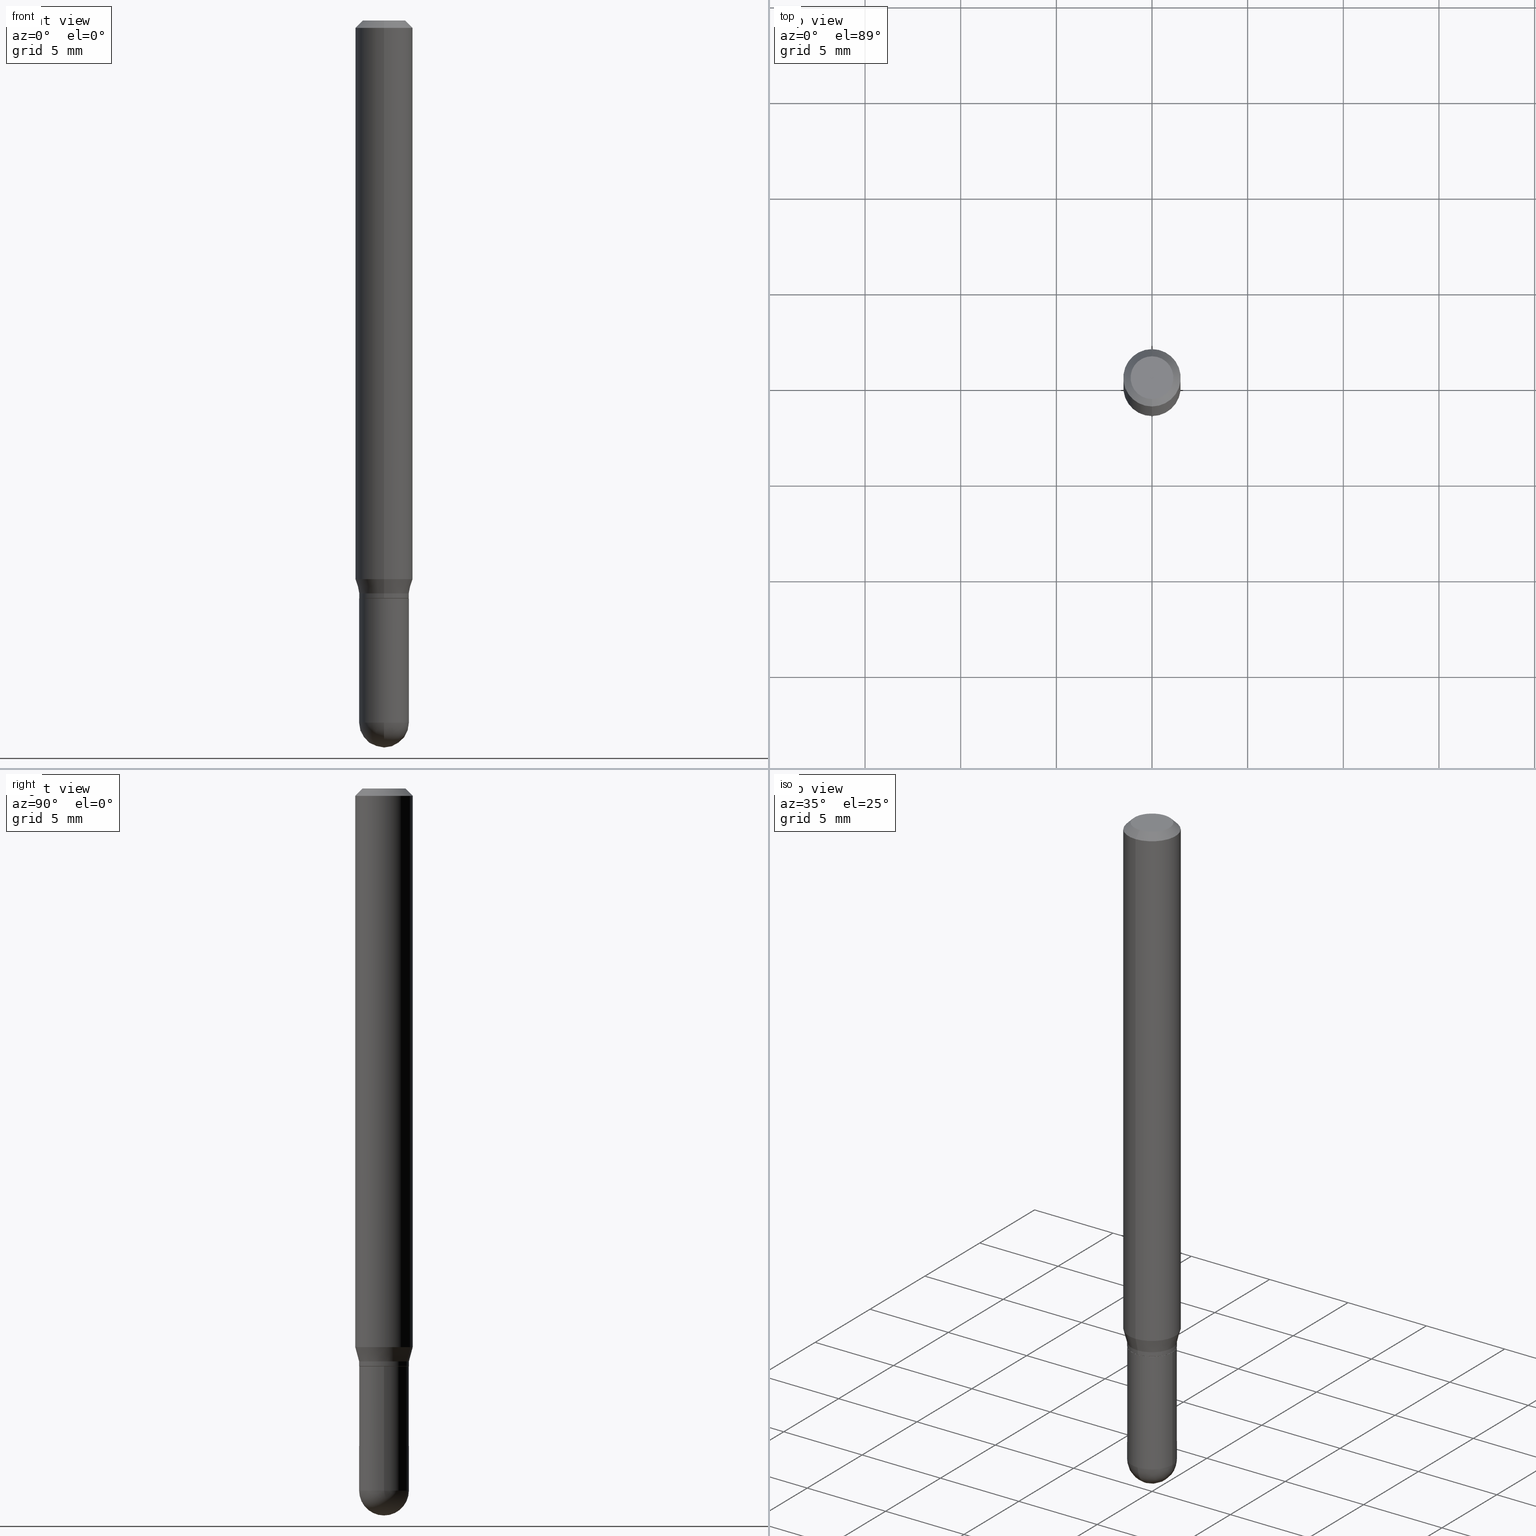
[diagram: canonical four-view strip — front | top / right | iso, engineering-drawing reading convention]
A machine part, canonical four-view strip (front | top / right | iso — engineering-drawing reading convention). The complete STEP part file that produces these views, byte-faithful:
ISO-10303-21;
HEADER;
FILE_DESCRIPTION (( 'STEP AP203' ),
    '1' );
FILE_NAME ('01995.STEP',
    '2024-03-07T19:53:20',
    ( '' ),
    ( '' ),
    'SwSTEP 2.0',
    'SolidWorks 2023',
    '' );
FILE_SCHEMA (( 'CONFIG_CONTROL_DESIGN' ));
ENDSEC;

DATA;
#1 = CARTESIAN_POINT ( 'NONE',  ( 3.533457878056902611E-29, -5.044841386494460595E-15, -1.444899999999999629 ) ) ;
#2 = ORIENTED_EDGE ( 'NONE', *, *, #408, .T. ) ;
#3 = VERTEX_POINT ( 'NONE', #276 ) ;
#4 = DIRECTION ( 'NONE',  ( 6.982962677686265922E-15, 1.000000000000000000, -3.491377669658199163E-15 ) ) ;
#5 = ORIENTED_EDGE ( 'NONE', *, *, #491, .T. ) ;
#6 = CC_DESIGN_APPROVAL ( #15, ( #486 ) ) ;
#7 = PERSON_AND_ORGANIZATION ( #372, #468 ) ;
#8 = CARTESIAN_POINT ( 'NONE',  ( 3.529079426656305644E-29, -5.051111578106095503E-15, -1.444899999999999851 ) ) ;
#9 = ORIENTED_EDGE ( 'NONE', *, *, #335, .T. ) ;
#10 = MECHANICAL_CONTEXT ( 'NONE', #428, 'mechanical' ) ;
#11 = DIRECTION ( 'NONE',  ( -2.445468806185136597E-29, 3.491481338843145583E-15, 1.000000000000000000 ) ) ;
#12 = COORDINATED_UNIVERSAL_TIME_OFFSET ( 5, 0, .BEHIND. ) ;
#13 = FACE_OUTER_BOUND ( 'NONE', #421, .T. ) ;
#14 = FACE_OUTER_BOUND ( 'NONE', #290, .T. ) ;
#15 = APPROVAL ( #488, 'UNSPECIFIED' ) ;
#16 = PERSON_AND_ORGANIZATION ( #372, #468 ) ;
#17 = EDGE_CURVE ( 'NONE', #308, #162, #155, .T. ) ;
#18 = AXIS2_PLACEMENT_3D ( 'NONE', #499, #140, #292 ) ;
#19 = APPROVAL_PERSON_ORGANIZATION ( #16, #167, #205 ) ;
#20 = FACE_OUTER_BOUND ( 'NONE', #86, .T. ) ;
#21 = CARTESIAN_POINT ( 'NONE',  ( 2.906525713811193925E-29, -4.149502360388770028E-15, -1.188499999999999890 ) ) ;
#22 = LINE ( 'NONE', #411, #504 ) ;
#23 = EDGE_CURVE ( 'NONE', #225, #28, #33, .T. ) ;
#24 = FACE_OUTER_BOUND ( 'NONE', #410, .T. ) ;
#25 = DIRECTION ( 'NONE',  ( -2.445468806185136597E-29, 3.491481338843145583E-15, 1.000000000000000000 ) ) ;
#26 = ORIENTED_EDGE ( 'NONE', *, *, #115, .F. ) ;
#27 = AXIS2_PLACEMENT_3D ( 'NONE', #131, #446, #102 ) ;
#28 = VERTEX_POINT ( 'NONE', #96 ) ;
#29 = DIRECTION ( 'NONE',  ( 5.024295867788190974E-15, 0.7071067811865681119, 0.7071067811865270336 ) ) ;
#30 = FACE_OUTER_BOUND ( 'NONE', #341, .T. ) ;
#31 = CARTESIAN_POINT ( 'NONE',  ( 3.637978807091716577E-16, 0.05120000000000005796, -1.787585366864999974E-16 ) ) ;
#32 = CARTESIAN_POINT ( 'NONE',  ( 0.000000000000000000, 0.000000000000000000, 0.000000000000000000 ) ) ;
#33 = CIRCLE ( 'NONE', #171, 0.05120000000000005796 ) ;
#34 = CARTESIAN_POINT ( 'NONE',  ( 3.652098203832684976E-29, -5.233010518460681627E-15, -1.496099999999999985 ) ) ;
#35 = CONICAL_SURFACE ( 'NONE', #236, 0.05070000000000000201, 0.7853981633974739252 ) ;
#36 = APPROVAL_PERSON_ORGANIZATION ( #84, #15, #364 ) ;
#37 = DIRECTION ( 'NONE',  ( -6.982962677686265133E-15, -1.000000000000000000, 3.491377669658199558E-15 ) ) ;
#38 = ORIENTED_EDGE ( 'NONE', *, *, #350, .F. ) ;
#39 =( NAMED_UNIT ( * ) SI_UNIT ( $, .STERADIAN. ) SOLID_ANGLE_UNIT ( ) );
#40 = ORIENTED_EDGE ( 'NONE', *, *, #82, .F. ) ;
#41 = CARTESIAN_POINT ( 'NONE',  ( 2.883293072430288411E-29, -4.116334272527016902E-15, -1.178999999999999826 ) ) ;
#42 = VECTOR ( 'NONE', #74, 39.37007874015748143 ) ;
#43 = CARTESIAN_POINT ( 'NONE',  ( 3.575276890975659377E-16, 0.05119999999999585993, -1.189000000000000057 ) ) ;
#44 = CARTESIAN_POINT ( 'NONE',  ( -4.051124067684085231E-16, -0.05905000000000005383, -0.01499999999999981730 ) ) ;
#45 = EDGE_LOOP ( 'NONE', ( #194, #349, #331, #436 ) ) ;
#46 = ADVANCED_FACE ( 'NONE', ( #246 ), #142, .T. ) ;
#47 = CARTESIAN_POINT ( 'NONE',  ( 3.637978807092061704E-16, 0.05119999999999488155, -1.444899999999999851 ) ) ;
#48 = ORIENTED_EDGE ( 'NONE', *, *, #408, .F. ) ;
#49 = AXIS2_PLACEMENT_3D ( 'NONE', #166, #55, #252 ) ;
#50 = APPLICATION_PROTOCOL_DEFINITION ( 'international standard', 'config_control_design', 1994, #428 ) ;
#51 = CARTESIAN_POINT ( 'NONE',  ( -4.123439461173460281E-16, -0.05905000000000402288, -1.149703401160584448 ) ) ;
#52 = ORIENTED_EDGE ( 'NONE', *, *, #53, .T. ) ;
#53 = EDGE_CURVE ( 'NONE', #461, #85, #139, .T. ) ;
#54 = DIRECTION ( 'NONE',  ( 1.000000000000000000, -6.982962677686267499E-15, 4.876176775795935232E-29 ) ) ;
#55 = DIRECTION ( 'NONE',  ( -2.445541197990066903E-29, 3.491377669658199558E-15, 1.000000000000000000 ) ) ;
#56 = DIRECTION ( 'NONE',  ( -2.445541197990066903E-29, 3.491377669658199558E-15, 1.000000000000000000 ) ) ;
#57 = DATE_AND_TIME ( #80, #383 ) ;
#58 = VECTOR ( 'NONE', #373, 39.37007874015748854 ) ;
#59 = AXIS2_PLACEMENT_3D ( 'NONE', #92, #248, #329 ) ;
#60 = DIRECTION ( 'NONE',  ( 1.000000000000000000, -6.982962677686263555E-15, 0.000000000000000000 ) ) ;
#61 = DIRECTION ( 'NONE',  ( 6.982962677686265922E-15, 1.000000000000000000, -3.505890868245046092E-15 ) ) ;
#62 = ORIENTED_EDGE ( 'NONE', *, *, #191, .F. ) ;
#63 = UNCERTAINTY_MEASURE_WITH_UNIT (LENGTH_MEASURE( 1.000000000000000082E-05 ), #392, 'distance_accuracy_value', 'NONE');
#64 = CARTESIAN_POINT ( 'NONE',  ( 3.668311796985106135E-31, -5.237066504487307521E-17, -0.01500000000000002373 ) ) ;
#65 = AXIS2_PLACEMENT_3D ( 'NONE', #404, #25, #251 ) ;
#66 = AXIS2_PLACEMENT_3D ( 'NONE', #207, #213, #371 ) ;
#67 = DIRECTION ( 'NONE',  ( -6.982962677686265133E-15, -1.000000000000000000, 3.491377669658199558E-15 ) ) ;
#68 = DIRECTION ( 'NONE',  ( -6.982962677686265922E-15, -1.000000000000000000, 4.626330217890369336E-15 ) ) ;
#69 = ORIENTED_EDGE ( 'NONE', *, *, #138, .F. ) ;
#70 = CARTESIAN_POINT ( 'NONE',  ( 3.602451670303998485E-16, 0.05069999999999585255, -1.189000000000000057 ) ) ;
#71 = VECTOR ( 'NONE', #430, 39.37007874015748143 ) ;
#72 = PERSON_AND_ORGANIZATION ( #372, #468 ) ;
#73 = CARTESIAN_POINT ( 'NONE',  ( 0.000000000000000000, 0.000000000000000000, 0.000000000000000000 ) ) ;
#74 = DIRECTION ( 'NONE',  ( -2.445541197990066623E-29, 3.491377669658199163E-15, 1.000000000000000000 ) ) ;
#75 = PERSON_AND_ORGANIZATION ( #372, #468 ) ;
#76 = VECTOR ( 'NONE', #124, 39.37007874015748143 ) ;
#77 = DIRECTION ( 'NONE',  ( -6.982962677686266711E-15, -1.000000000000000000, 3.491377669658199163E-15 ) ) ;
#78 = LINE ( 'NONE', #44, #467 ) ;
#79 = ORIENTED_EDGE ( 'NONE', *, *, #115, .T. ) ;
#80 = CALENDAR_DATE ( 2024, 7, 3 ) ;
#81 = ORIENTED_EDGE ( 'NONE', *, *, #429, .F. ) ;
#82 = EDGE_CURVE ( 'NONE', #478, #3, #466, .T. ) ;
#83 = VERTEX_POINT ( 'NONE', #418 ) ;
#84 = PERSON_AND_ORGANIZATION ( #372, #468 ) ;
#85 = VERTEX_POINT ( 'NONE', #459 ) ;
#86 = EDGE_LOOP ( 'NONE', ( #509, #235, #272, #464 ) ) ;
#87 = CIRCLE ( 'NONE', #406, 0.04404999999999999888 ) ;
#88 = CC_DESIGN_DATE_AND_TIME_ASSIGNMENT ( #57, #437, ( #173 ) ) ;
#89 = FACE_OUTER_BOUND ( 'NONE', #355, .T. ) ;
#90 = CARTESIAN_POINT ( 'NONE',  ( 4.123439461173743285E-16, 0.05904999999999994975, -0.01500000000000023016 ) ) ;
#91 = APPROVAL_DATE_TIME ( #267, #167 ) ;
#92 = CARTESIAN_POINT ( 'NONE',  ( 2.907748484410189276E-29, -4.151248049223599265E-15, -1.188999999999999835 ) ) ;
#93 = CARTESIAN_POINT ( 'NONE',  ( -0.05120000000000000939, -4.234308468480308622E-15, -1.188999999999999835 ) ) ;
#94 = AXIS2_PLACEMENT_3D ( 'NONE', #413, #106, #379 ) ;
#95 = AXIS2_PLACEMENT_3D ( 'NONE', #409, #407, #61 ) ;
#96 = CARTESIAN_POINT ( 'NONE',  ( -3.575276890975084002E-16, -0.05120000000000417273, -1.178999999999999826 ) ) ;
#97 = DIMENSIONAL_EXPONENTS ( 1.000000000000000000, 0.000000000000000000, 0.000000000000000000, 0.000000000000000000, 0.000000000000000000, 0.000000000000000000, 0.000000000000000000 ) ;
#98 = CARTESIAN_POINT ( 'NONE',  ( 2.811647033007510511E-29, -4.014048781542148167E-15, -1.149703401160584670 ) ) ;
#99 = ORIENTED_EDGE ( 'NONE', *, *, #214, .F. ) ;
#100 = FACE_OUTER_BOUND ( 'NONE', #197, .T. ) ;
#101 = EDGE_LOOP ( 'NONE', ( #268, #192, #79, #285, #481 ) ) ;
#102 = DIRECTION ( 'NONE',  ( -6.982962677686266711E-15, -1.000000000000000000, 2.667820306312754057E-15 ) ) ;
#103 = EDGE_CURVE ( 'NONE', #154, #395, #441, .T. ) ;
#104 = CONICAL_SURFACE ( 'NONE', #59, 0.05070000000000000201, 0.7853981633974739252 ) ;
#105 = CARTESIAN_POINT ( 'NONE',  ( 5.836726591879914333E-46, -8.332804576564942054E-32, -2.386680950898305570E-17 ) ) ;
#106 = DIRECTION ( 'NONE',  ( -2.445468806185136597E-29, 3.491481338843145583E-15, 1.000000000000000000 ) ) ;
#107 = LENGTH_MEASURE_WITH_UNIT ( LENGTH_MEASURE( 0.02539999999999999897 ), #231 );
#108 = CARTESIAN_POINT ( 'NONE',  ( 2.811647033007510511E-29, -4.014048781542148167E-15, -1.149703401160584670 ) ) ;
#109 = ADVANCED_FACE ( 'NONE', ( #221 ), #184, .T. ) ;
#110 = APPLICATION_CONTEXT ( 'configuration controlled 3d designs of mechanical parts and assemblies' ) ;
#111 = CIRCLE ( 'NONE', #157, 0.05904999999999999832 ) ;
#112 = SPHERICAL_SURFACE ( 'NONE', #196, 0.05119999999999987061 ) ;
#113 = EDGE_CURVE ( 'NONE', #458, #444, #87, .T. ) ;
#114 = VECTOR ( 'NONE', #321, 39.37007874015748143 ) ;
#115 = EDGE_CURVE ( 'NONE', #215, #83, #216, .T. ) ;
#116 = PLANE ( 'NONE',  #322 ) ;
#117 = ORIENTED_EDGE ( 'NONE', *, *, #134, .T. ) ;
#118 = DATE_AND_TIME ( #318, #158 ) ;
#119 = CIRCLE ( 'NONE', #49, 0.05904999999999999832 ) ;
#120 = ORIENTED_EDGE ( 'NONE', *, *, #249, .F. ) ;
#121 = DIRECTION ( 'NONE',  ( -2.445541197990066903E-29, 3.491377669658199558E-15, 1.000000000000000000 ) ) ;
#122 = PERSON_AND_ORGANIZATION_ROLE ( 'design_supplier' ) ;
#123 = ORIENTED_EDGE ( 'NONE', *, *, #343, .F. ) ;
#124 = DIRECTION ( 'NONE',  ( -2.445541197990066623E-29, 3.491377669658199163E-15, 1.000000000000000000 ) ) ;
#125 = CC_DESIGN_DATE_AND_TIME_ASSIGNMENT ( #440, #356, ( #330 ) ) ;
#126 = SECURITY_CLASSIFICATION_LEVEL ( 'unclassified' ) ;
#127 = DIRECTION ( 'NONE',  ( -6.982962677686266711E-15, -1.000000000000000000, 2.667820306312753663E-15 ) ) ;
#128 = SHAPE_DEFINITION_REPRESENTATION ( #245, #445 ) ;
#129 = EDGE_LOOP ( 'NONE', ( #288, #273 ) ) ;
#130 = AXIS2_PLACEMENT_3D ( 'NONE', #482, #200, #362 ) ;
#131 = CARTESIAN_POINT ( 'NONE',  ( 2.883293072430288411E-29, -4.116334272527016902E-15, -1.178999999999999826 ) ) ;
#132 = CARTESIAN_POINT ( 'NONE',  ( -3.575276890975084002E-16, -0.05120000000000417273, -1.178999999999999826 ) ) ;
#133 = DIRECTION ( 'NONE',  ( 6.982962677686265922E-15, 1.000000000000000000, -3.505890868245046092E-15 ) ) ;
#134 = EDGE_CURVE ( 'NONE', #85, #225, #219, .T. ) ;
#135 = AXIS2_PLACEMENT_3D ( 'NONE', #73, #121, #347 ) ;
#136 = CARTESIAN_POINT ( 'NONE',  ( 3.637978807092004511E-16, 0.05119999999999594320, -1.179000000000000048 ) ) ;
#137 = LINE ( 'NONE', #136, #58 ) ;
#138 = EDGE_CURVE ( 'NONE', #154, #215, #274, .T. ) ;
#139 = LINE ( 'NONE', #70, #309 ) ;
#140 = DIRECTION ( 'NONE',  ( 1.000000000000000000, -6.982962677686265922E-15, 4.883557194083112340E-29 ) ) ;
#141 = ORIENTED_EDGE ( 'NONE', *, *, #160, .F. ) ;
#142 = CONICAL_SURFACE ( 'NONE', #27, 0.05120000000000005796, 0.2617993877991509066 ) ;
#143 = AXIS2_PLACEMENT_3D ( 'NONE', #403, #170, #286 ) ;
#144 = CYLINDRICAL_SURFACE ( 'NONE', #182, 0.05120000000000005796 ) ;
#145 = LINE ( 'NONE', #295, #414 ) ;
#146 = ORIENTED_EDGE ( 'NONE', *, *, #214, .T. ) ;
#147 = FACE_OUTER_BOUND ( 'NONE', #384, .T. ) ;
#148 = EDGE_CURVE ( 'NONE', #506, #308, #145, .T. ) ;
#149 = PRODUCT ( '01995', '01995', '', ( #10 ) ) ;
#150 = CARTESIAN_POINT ( 'NONE',  ( -3.575276890975372429E-16, -0.05120000000000005796, 1.787585366864999974E-16 ) ) ;
#151 = DIRECTION ( 'NONE',  ( -2.445541197990066903E-29, 3.491377669658199558E-15, 1.000000000000000000 ) ) ;
#152 = APPROVAL_STATUS ( 'not_yet_approved' ) ;
#153 = DIRECTION ( 'NONE',  ( 1.000000000000000000, -6.982962677686263555E-15, 0.000000000000000000 ) ) ;
#154 = VERTEX_POINT ( 'NONE', #34 ) ;
#155 = CIRCLE ( 'NONE', #65, 0.05120000000000000939 ) ;
#156 = CARTESIAN_POINT ( 'NONE',  ( -3.536586717851222218E-16, -0.04404999999999999888, 1.299283768394606275E-16 ) ) ;
#157 = AXIS2_PLACEMENT_3D ( 'NONE', #98, #483, #487 ) ;
#158 = LOCAL_TIME ( 14, 53, 20.00000000000000000, #233 ) ;
#159 = ORIENTED_EDGE ( 'NONE', *, *, #294, .F. ) ;
#160 = EDGE_CURVE ( 'NONE', #461, #338, #503, .T. ) ;
#161 = APPROVAL_DATE_TIME ( #118, #15 ) ;
#162 = VERTEX_POINT ( 'NONE', #507 ) ;
#163 = DIRECTION ( 'NONE',  ( 2.445541197990066903E-29, -3.491377669658199558E-15, -1.000000000000000000 ) ) ;
#164 = CALENDAR_DATE ( 2024, 7, 3 ) ;
#165 = AXIS2_PLACEMENT_3D ( 'NONE', #108, #291, #68 ) ;
#166 = CARTESIAN_POINT ( 'NONE',  ( 3.668311796985106135E-31, -5.237066504487307521E-17, -0.01500000000000002373 ) ) ;
#167 = APPROVAL ( #369, 'UNSPECIFIED' ) ;
#168 = LINE ( 'NONE', #132, #208 ) ;
#169 = ADVANCED_FACE ( 'NONE', ( #147 ), #297, .F. ) ;
#170 = DIRECTION ( 'NONE',  ( -2.445468806185136597E-29, 3.491481338843145583E-15, 1.000000000000000000 ) ) ;
#171 = AXIS2_PLACEMENT_3D ( 'NONE', #426, #490, #361 ) ;
#172 = VERTEX_POINT ( 'NONE', #497 ) ;
#173 = PRODUCT_DEFINITION ( 'UNKNOWN', '', #486, #501 ) ;
#174 = DIRECTION ( 'NONE',  ( -2.445541197990066903E-29, 3.491377669658199558E-15, 1.000000000000000000 ) ) ;
#175 = DIRECTION ( 'NONE',  ( 1.000000000000000000, -6.982962677686267499E-15, 4.876176775795935232E-29 ) ) ;
#176 = ORIENTED_EDGE ( 'NONE', *, *, #456, .T. ) ;
#177 = DIRECTION ( 'NONE',  ( 1.000000000000000000, -7.105427357601001070E-15, 4.926315508542082329E-29 ) ) ;
#178 = CARTESIAN_POINT ( 'NONE',  ( 5.836726591879914333E-46, -8.332804576564942054E-32, -2.386680950898305570E-17 ) ) ;
#179 = DIRECTION ( 'NONE',  ( -2.445541197990066623E-29, 3.491377669658199163E-15, 1.000000000000000000 ) ) ;
#180 = ORIENTED_EDGE ( 'NONE', *, *, #82, .T. ) ;
#181 = AXIS2_PLACEMENT_3D ( 'NONE', #449, #243, #60 ) ;
#182 = AXIS2_PLACEMENT_3D ( 'NONE', #32, #183, #77 ) ;
#183 = DIRECTION ( 'NONE',  ( -2.445541197990066903E-29, 3.491377669658199558E-15, 1.000000000000000000 ) ) ;
#184 = CYLINDRICAL_SURFACE ( 'NONE', #381, 0.05904999999999999832 ) ;
#185 = LINE ( 'NONE', #229, #71 ) ;
#186 = DIRECTION ( 'NONE',  ( -2.445541197990066903E-29, 3.491377669658199558E-15, 1.000000000000000000 ) ) ;
#187 = AXIS2_PLACEMENT_3D ( 'NONE', #332, #380, #339 ) ;
#188 = AXIS2_PLACEMENT_3D ( 'NONE', #41, #186, #190 ) ;
#189 = PRODUCT_RELATED_PRODUCT_CATEGORY ( 'detail', '', ( #149 ) ) ;
#190 = DIRECTION ( 'NONE',  ( -6.982962677686266711E-15, -1.000000000000000000, 2.667820306312754057E-15 ) ) ;
#191 = EDGE_CURVE ( 'NONE', #225, #3, #137, .T. ) ;
#192 = ORIENTED_EDGE ( 'NONE', *, *, #448, .T. ) ;
#193 = DIRECTION ( 'NONE',  ( -2.445468806185136597E-29, 3.491481338843145583E-15, 1.000000000000000000 ) ) ;
#194 = ORIENTED_EDGE ( 'NONE', *, *, #435, .F. ) ;
#195 = DIRECTION ( 'NONE',  ( 1.000000000000000000, 0.000000000000000000, 0.000000000000000000 ) ) ;
#196 = AXIS2_PLACEMENT_3D ( 'NONE', #8, #480, #427 ) ;
#197 = EDGE_LOOP ( 'NONE', ( #146, #117, #48, #240 ) ) ;
#198 = PERSON_AND_ORGANIZATION_ROLE ( 'design_owner' ) ;
#199 = EDGE_LOOP ( 'NONE', ( #5, #319 ) ) ;
#200 = DIRECTION ( 'NONE',  ( -2.445541197990066903E-29, 3.491377669658199558E-15, 1.000000000000000000 ) ) ;
#201 = LINE ( 'NONE', #90, #114 ) ;
#202 = PERSON_AND_ORGANIZATION_ROLE ( 'classification_officer' ) ;
#203 = FACE_OUTER_BOUND ( 'NONE', #376, .T. ) ;
#204 = EDGE_CURVE ( 'NONE', #444, #365, #201, .T. ) ;
#205 = APPROVAL_ROLE ( '' ) ;
#206 = VECTOR ( 'NONE', #179, 39.37007874015748143 ) ;
#207 = CARTESIAN_POINT ( 'NONE',  ( 2.907662410554126992E-29, -4.151371311884500358E-15, -1.188999999999999835 ) ) ;
#208 = VECTOR ( 'NONE', #280, 39.37007874015748854 ) ;
#209 = ADVANCED_FACE ( 'NONE', ( #89 ), #423, .T. ) ;
#210 = ADVANCED_FACE ( 'NONE', ( #24 ), #35, .T. ) ;
#211 = CARTESIAN_POINT ( 'NONE',  ( 3.916866830877838757E-16, 0.05119999999999594320, -1.179000000000000048 ) ) ;
#212 = DIRECTION ( 'NONE',  ( -6.982962677686265922E-15, -1.000000000000000000, 2.694130171266531790E-15 ) ) ;
#213 = DIRECTION ( 'NONE',  ( -2.445468806185136597E-29, 3.491481338843145583E-15, 1.000000000000000000 ) ) ;
#214 = EDGE_CURVE ( 'NONE', #172, #85, #382, .T. ) ;
#215 = VERTEX_POINT ( 'NONE', #239 ) ;
#216 = CIRCLE ( 'NONE', #94, 0.05120000000000000939 ) ;
#217 = CIRCLE ( 'NONE', #399, 0.05904999999999999832 ) ;
#218 = ORIENTED_EDGE ( 'NONE', *, *, #294, .T. ) ;
#219 = LINE ( 'NONE', #31, #206 ) ;
#220 = COORDINATED_UNIVERSAL_TIME_OFFSET ( 5, 0, .BEHIND. ) ;
#221 = FACE_OUTER_BOUND ( 'NONE', #250, .T. ) ;
#222 = DIRECTION ( 'NONE',  ( -2.445468806185136597E-29, 3.491481338843145583E-15, 1.000000000000000000 ) ) ;
#223 = ORIENTED_EDGE ( 'NONE', *, *, #435, .T. ) ;
#224 = CARTESIAN_POINT ( 'NONE',  ( 3.529079426656305644E-29, -5.051111578106095503E-15, -1.444899999999999851 ) ) ;
#225 = VERTEX_POINT ( 'NONE', #211 ) ;
#226 = CARTESIAN_POINT ( 'NONE',  ( 0.000000000000000000, 0.000000000000000000, 0.000000000000000000 ) ) ;
#227 = CARTESIAN_POINT ( 'NONE',  ( -0.05120000000000000939, -4.234308468480308622E-15, -1.444899999999999629 ) ) ;
#228 = ADVANCED_FACE ( 'NONE', ( #203 ), #230, .T. ) ;
#229 = CARTESIAN_POINT ( 'NONE',  ( -4.123439461173739834E-16, -0.05904999999999999832, 2.061658513933166628E-16 ) ) ;
#230 = CONICAL_SURFACE ( 'NONE', #95, 0.05904999999999999832, 0.7853981633974483900 ) ;
#231 =( LENGTH_UNIT ( ) NAMED_UNIT ( * ) SI_UNIT ( $, .METRE. ) );
#232 = DATE_AND_TIME ( #346, #432 ) ;
#233 = COORDINATED_UNIVERSAL_TIME_OFFSET ( 5, 0, .BEHIND. ) ;
#234 = ORIENTED_EDGE ( 'NONE', *, *, #258, .T. ) ;
#235 = ORIENTED_EDGE ( 'NONE', *, *, #282, .T. ) ;
#236 = AXIS2_PLACEMENT_3D ( 'NONE', #242, #405, #212 ) ;
#237 = APPROVAL_PERSON_ORGANIZATION ( #75, #377, #305 ) ;
#238 = ORIENTED_EDGE ( 'NONE', *, *, #204, .T. ) ;
#239 = CARTESIAN_POINT ( 'NONE',  ( -3.575276890975010539E-16, -0.05120000000000499152, -1.444899999999999407 ) ) ;
#240 = ORIENTED_EDGE ( 'NONE', *, *, #391, .F. ) ;
#241 = EDGE_CURVE ( 'NONE', #3, #478, #111, .T. ) ;
#242 = CARTESIAN_POINT ( 'NONE',  ( 2.907748484410189276E-29, -4.151248049223599265E-15, -1.188999999999999835 ) ) ;
#243 = DIRECTION ( 'NONE',  ( -2.445468806185136597E-29, 3.491481338843145583E-15, 1.000000000000000000 ) ) ;
#244 = CLOSED_SHELL ( 'NONE', ( #500, #210, #228, #109, #209, #46, #398, #312, #450, #169, #489, #477 ) ) ;
#245 = PRODUCT_DEFINITION_SHAPE ( 'NONE', 'NONE',  #173 ) ;
#246 = FACE_OUTER_BOUND ( 'NONE', #453, .T. ) ;
#247 = CYLINDRICAL_SURFACE ( 'NONE', #301, 0.05120000000000000939 ) ;
#248 = DIRECTION ( 'NONE',  ( -2.445541197990066903E-29, 3.491377669658199558E-15, 1.000000000000000000 ) ) ;
#249 = EDGE_CURVE ( 'NONE', #395, #506, #451, .T. ) ;
#250 = EDGE_LOOP ( 'NONE', ( #180, #223, #419, #38 ) ) ;
#251 = DIRECTION ( 'NONE',  ( 1.000000000000000000, -6.982962677686263555E-15, 0.000000000000000000 ) ) ;
#252 = DIRECTION ( 'NONE',  ( -6.982962677686265922E-15, -1.000000000000000000, 3.505890868245046092E-15 ) ) ;
#253 = DIRECTION ( 'NONE',  ( -6.982962677686265922E-15, -1.000000000000000000, 3.491377669658199163E-15 ) ) ;
#254 = CONICAL_SURFACE ( 'NONE', #345, 0.05904999999999999832, 0.7853981633974483900 ) ;
#255 = ORIENTED_EDGE ( 'NONE', *, *, #23, .T. ) ;
#256 = DIRECTION ( 'NONE',  ( -2.445541197990066903E-29, 3.491377669658199558E-15, 1.000000000000000000 ) ) ;
#257 = ORIENTED_EDGE ( 'NONE', *, *, #429, .T. ) ;
#258 = EDGE_CURVE ( 'NONE', #365, #357, #217, .T. ) ;
#259 = DIRECTION ( 'NONE',  ( -2.445468806185136877E-29, 3.491481338843145188E-15, 1.000000000000000000 ) ) ;
#260 = ORIENTED_EDGE ( 'NONE', *, *, #491, .F. ) ;
#261 = CARTESIAN_POINT ( 'NONE',  ( 2.907748484410189276E-29, -4.151248049223599265E-15, -1.188999999999999835 ) ) ;
#262 = AXIS2_PLACEMENT_3D ( 'NONE', #512, #151, #304 ) ;
#263 = COORDINATED_UNIVERSAL_TIME_OFFSET ( 5, 0, .BEHIND. ) ;
#264 = EDGE_CURVE ( 'NONE', #357, #365, #119, .T. ) ;
#265 = FACE_OUTER_BOUND ( 'NONE', #45, .T. ) ;
#266 = CARTESIAN_POINT ( 'NONE',  ( 3.075995059520799729E-16, 0.04404999999999999888, -1.657285911029352156E-16 ) ) ;
#267 = DATE_AND_TIME ( #164, #417 ) ;
#268 = ORIENTED_EDGE ( 'NONE', *, *, #148, .F. ) ;
#269 = APPROVAL_DATE_TIME ( #232, #377 ) ;
#270 = FACE_OUTER_BOUND ( 'NONE', #298, .T. ) ;
#271 = ORIENTED_EDGE ( 'NONE', *, *, #53, .F. ) ;
#272 = ORIENTED_EDGE ( 'NONE', *, *, #391, .T. ) ;
#273 = ORIENTED_EDGE ( 'NONE', *, *, #113, .T. ) ;
#274 = CIRCLE ( 'NONE', #344, 0.05119999999999987061 ) ;
#275 = COORDINATED_UNIVERSAL_TIME_OFFSET ( 5, 0, .BEHIND. ) ;
#276 = CARTESIAN_POINT ( 'NONE',  ( 4.195754854663671031E-16, 0.05904999999999598070, -1.149703401160584892 ) ) ;
#277 = CC_DESIGN_PERSON_AND_ORGANIZATION_ASSIGNMENT ( #7, #198, ( #149 ) ) ;
#278 = CYLINDRICAL_SURFACE ( 'NONE', #130, 0.05120000000000005796 ) ;
#279 = DIRECTION ( 'NONE',  ( -6.982962677686265922E-15, -1.000000000000000000, 3.505890868245046092E-15 ) ) ;
#280 = DIRECTION ( 'NONE',  ( -1.807323732225334478E-15, -0.2588190451025187966, 0.9659258262890687563 ) ) ;
#281 = LINE ( 'NONE', #287, #388 ) ;
#282 = EDGE_CURVE ( 'NONE', #85, #172, #293, .T. ) ;
#283 = FACE_OUTER_BOUND ( 'NONE', #101, .T. ) ;
#284 =( GEOMETRIC_REPRESENTATION_CONTEXT ( 3 ) GLOBAL_UNCERTAINTY_ASSIGNED_CONTEXT ( ( #63 ) ) GLOBAL_UNIT_ASSIGNED_CONTEXT ( ( #392, #302, #39 ) ) REPRESENTATION_CONTEXT ( 'NONE', 'WORKASPACE' ) );
#285 = ORIENTED_EDGE ( 'NONE', *, *, #493, .T. ) ;
#286 = DIRECTION ( 'NONE',  ( 1.000000000000000000, -6.982962677686263555E-15, 0.000000000000000000 ) ) ;
#287 = CARTESIAN_POINT ( 'NONE',  ( 0.05120000000000000939, -3.575276890975369471E-16, 2.496602509207519384E-30 ) ) ;
#288 = ORIENTED_EDGE ( 'NONE', *, *, #343, .T. ) ;
#289 = DIRECTION ( 'NONE',  ( -2.445541197990066903E-29, 3.491377669658199163E-15, 1.000000000000000000 ) ) ;
#290 = EDGE_LOOP ( 'NONE', ( #465, #123, #238, #234 ) ) ;
#291 = DIRECTION ( 'NONE',  ( -2.445541197990066903E-29, 3.491377669658199558E-15, 1.000000000000000000 ) ) ;
#292 = DIRECTION ( 'NONE',  ( -6.982962677686265922E-15, -1.000000000000000000, 5.335640612625527836E-15 ) ) ;
#293 = CIRCLE ( 'NONE', #475, 0.05120000000000006490 ) ;
#294 = EDGE_CURVE ( 'NONE', #338, #172, #22, .T. ) ;
#295 = CARTESIAN_POINT ( 'NONE',  ( -0.05120000000000000939, 3.637978807091713619E-16, -2.518494766210512278E-30 ) ) ;
#296 = ORIENTED_EDGE ( 'NONE', *, *, #103, .F. ) ;
#297 = PLANE ( 'NONE',  #320 ) ;
#298 = EDGE_LOOP ( 'NONE', ( #439, #498, #260, #307, #9 ) ) ;
#299 = CC_DESIGN_PERSON_AND_ORGANIZATION_ASSIGNMENT ( #72, #386, ( #173 ) ) ;
#300 = AXIS2_PLACEMENT_3D ( 'NONE', #224, #177, #462 ) ;
#301 = AXIS2_PLACEMENT_3D ( 'NONE', #416, #222, #175 ) ;
#302 =( NAMED_UNIT ( * ) PLANE_ANGLE_UNIT ( ) SI_UNIT ( $, .RADIAN. ) );
#303 = FACE_OUTER_BOUND ( 'NONE', #199, .T. ) ;
#304 = DIRECTION ( 'NONE',  ( -6.982962677686265922E-15, -1.000000000000000000, 2.694130171266531790E-15 ) ) ;
#305 = APPROVAL_ROLE ( '' ) ;
#306 = FACE_OUTER_BOUND ( 'NONE', #129, .T. ) ;
#307 = ORIENTED_EDGE ( 'NONE', *, *, #493, .F. ) ;
#308 = VERTEX_POINT ( 'NONE', #93 ) ;
#309 = VECTOR ( 'NONE', #29, 39.37007874015748143 ) ;
#310 = LOCAL_TIME ( 14, 53, 20.00000000000000000, #12 ) ;
#311 = PERSON_AND_ORGANIZATION ( #372, #468 ) ;
#312 = ADVANCED_FACE ( 'NONE', ( #14 ), #254, .T. ) ;
#313 = ORIENTED_EDGE ( 'NONE', *, *, #160, .T. ) ;
#314 = LINE ( 'NONE', #150, #76 ) ;
#315 = PERSON_AND_ORGANIZATION ( #372, #468 ) ;
#316 = ORIENTED_EDGE ( 'NONE', *, *, #138, .T. ) ;
#317 = EDGE_CURVE ( 'NONE', #28, #478, #168, .T. ) ;
#318 = CALENDAR_DATE ( 2024, 7, 3 ) ;
#319 = ORIENTED_EDGE ( 'NONE', *, *, #17, .T. ) ;
#320 = AXIS2_PLACEMENT_3D ( 'NONE', #261, #289, #422 ) ;
#321 = DIRECTION ( 'NONE',  ( 4.937700262164548042E-15, 0.7071067811865451302, -0.7071067811865499042 ) ) ;
#322 = AXIS2_PLACEMENT_3D ( 'NONE', #266, #433, #4 ) ;
#323 = MANIFOLD_SOLID_BREP ( 'Body-Move/Copy2[2]', #244 ) ;
#324 = CARTESIAN_POINT ( 'NONE',  ( 2.906525713811193925E-29, -4.149502360388770028E-15, -1.188499999999999890 ) ) ;
#325 = CARTESIAN_POINT ( 'NONE',  ( -3.540362077586646535E-16, -0.05070000000000415147, -1.188999999999999835 ) ) ;
#326 = CARTESIAN_POINT ( 'NONE',  ( 2.883293072430288411E-29, -4.116334272527016902E-15, -1.178999999999999826 ) ) ;
#327 = CLOSED_SHELL ( 'NONE', ( #470, #342, #378, #412, #340 ) ) ;
#328 = CIRCLE ( 'NONE', #485, 0.05120000000000000939 ) ;
#329 = DIRECTION ( 'NONE',  ( -6.982962677686265922E-15, -1.000000000000000000, 2.694130171266531790E-15 ) ) ;
#330 = SECURITY_CLASSIFICATION ( '', '', #126 ) ;
#331 = ORIENTED_EDGE ( 'NONE', *, *, #350, .T. ) ;
#332 = CARTESIAN_POINT ( 'NONE',  ( 2.907748484410189276E-29, -4.151248049223599265E-15, -1.188999999999999835 ) ) ;
#333 = ORIENTED_EDGE ( 'NONE', *, *, #317, .F. ) ;
#334 = DIRECTION ( 'NONE',  ( -2.445541197990066903E-29, 3.491377669658199558E-15, 1.000000000000000000 ) ) ;
#335 = EDGE_CURVE ( 'NONE', #83, #395, #415, .T. ) ;
#336 = CARTESIAN_POINT ( 'NONE',  ( 3.529079426656305644E-29, -5.051111578106095503E-15, -1.444899999999999851 ) ) ;
#337 = CIRCLE ( 'NONE', #66, 0.05120000000000000939 ) ;
#338 = VERTEX_POINT ( 'NONE', #325 ) ;
#339 = DIRECTION ( 'NONE',  ( -6.982962677686265922E-15, -1.000000000000000000, 2.694130171266531790E-15 ) ) ;
#340 = ADVANCED_FACE ( 'NONE', ( #283 ), #247, .T. ) ;
#341 = EDGE_LOOP ( 'NONE', ( #69, #496, #397, #26 ) ) ;
#342 = ADVANCED_FACE ( 'NONE', ( #30 ), #508, .T. ) ;
#343 = EDGE_CURVE ( 'NONE', #444, #458, #375, .T. ) ;
#344 = AXIS2_PLACEMENT_3D ( 'NONE', #336, #420, #502 ) ;
#345 = AXIS2_PLACEMENT_3D ( 'NONE', #64, #163, #133 ) ;
#346 = CALENDAR_DATE ( 2024, 7, 3 ) ;
#347 = DIRECTION ( 'NONE',  ( -6.982962677686265922E-15, -1.000000000000000000, 3.491377669658199163E-15 ) ) ;
#348 = CARTESIAN_POINT ( 'NONE',  ( 3.599717260347271507E-16, 0.04404999999999999888, -1.776619958574267204E-16 ) ) ;
#349 = ORIENTED_EDGE ( 'NONE', *, *, #241, .T. ) ;
#350 = EDGE_CURVE ( 'NONE', #478, #357, #185, .T. ) ;
#351 = DIRECTION ( 'NONE',  ( -4.851104656540964275E-15, -0.7071067811865500152, -0.7071067811865450192 ) ) ;
#352 = ORIENTED_EDGE ( 'NONE', *, *, #191, .T. ) ;
#353 = AXIS2_PLACEMENT_3D ( 'NONE', #43, #387, #393 ) ;
#354 = FACE_OUTER_BOUND ( 'NONE', #474, .T. ) ;
#355 = EDGE_LOOP ( 'NONE', ( #2, #352, #40, #333 ) ) ;
#356 = DATE_TIME_ROLE ( 'classification_date' ) ;
#357 = VERTEX_POINT ( 'NONE', #385 ) ;
#358 = CC_DESIGN_PERSON_AND_ORGANIZATION_ASSIGNMENT ( #311, #401, ( #486 ) ) ;
#359 = APPLICATION_PROTOCOL_DEFINITION ( 'international standard', 'config_control_design', 1994, #110 ) ;
#360 = ORIENTED_EDGE ( 'NONE', *, *, #264, .T. ) ;
#361 = DIRECTION ( 'NONE',  ( -6.982962677686266711E-15, -1.000000000000000000, 2.667820306312754057E-15 ) ) ;
#362 = DIRECTION ( 'NONE',  ( -6.982962677686266711E-15, -1.000000000000000000, 3.491377669658199163E-15 ) ) ;
#363 = DIRECTION ( 'NONE',  ( -6.982962677686266711E-15, -1.000000000000000000, 2.667820306312753663E-15 ) ) ;
#364 = APPROVAL_ROLE ( '' ) ;
#365 = VERTEX_POINT ( 'NONE', #510 ) ;
#366 = CYLINDRICAL_SURFACE ( 'NONE', #442, 0.05120000000000000939 ) ;
#367 = CARTESIAN_POINT ( 'NONE',  ( 3.668311796985106135E-31, -5.237066504487307521E-17, -0.01500000000000002373 ) ) ;
#368 = AXIS2_PLACEMENT_3D ( 'NONE', #178, #463, #37 ) ;
#369 = APPROVAL_STATUS ( 'not_yet_approved' ) ;
#370 = AXIS2_PLACEMENT_3D ( 'NONE', #479, #443, #195 ) ;
#371 = DIRECTION ( 'NONE',  ( 1.000000000000000000, -6.982962677686263555E-15, 0.000000000000000000 ) ) ;
#372 = PERSON ( 'UNSPECIFIED', 'UNSPECIFIED', 'UNSPECIFIED', ('UNSPECIFIED'), ('UNSPECIFIED'), ('UNSPECIFIED') ) ;
#373 = DIRECTION ( 'NONE',  ( 1.839019923739604654E-15, 0.2588190451025255689, 0.9659258262890669799 ) ) ;
#374 = DIRECTION ( 'NONE',  ( -6.982962677686266711E-15, -1.000000000000000000, 2.667820306312754057E-15 ) ) ;
#375 = CIRCLE ( 'NONE', #368, 0.04404999999999999888 ) ;
#376 = EDGE_LOOP ( 'NONE', ( #394, #176, #360, #434 ) ) ;
#377 = APPROVAL ( #152, 'UNSPECIFIED' ) ;
#378 = ADVANCED_FACE ( 'NONE', ( #303 ), #396, .F. ) ;
#379 = DIRECTION ( 'NONE',  ( 1.000000000000000000, -6.982962677686263555E-15, 0.000000000000000000 ) ) ;
#380 = DIRECTION ( 'NONE',  ( -2.445541197990066903E-29, 3.491377669658199558E-15, 1.000000000000000000 ) ) ;
#381 = AXIS2_PLACEMENT_3D ( 'NONE', #226, #334, #253 ) ;
#382 = CIRCLE ( 'NONE', #511, 0.05120000000000006490 ) ;
#383 = LOCAL_TIME ( 14, 53, 20.00000000000000000, #220 ) ;
#384 = EDGE_LOOP ( 'NONE', ( #81, #141 ) ) ;
#385 = CARTESIAN_POINT ( 'NONE',  ( -4.123439461173736383E-16, -0.05905000000000005383, -0.01499999999999981730 ) ) ;
#386 = PERSON_AND_ORGANIZATION_ROLE ( 'creator' ) ;
#387 = DIRECTION ( 'NONE',  ( 2.438088387897960049E-29, -3.491481338843145188E-15, -1.000000000000000000 ) ) ;
#388 = VECTOR ( 'NONE', #455, 39.37007874015748143 ) ;
#389 = CC_DESIGN_PERSON_AND_ORGANIZATION_ASSIGNMENT ( #315, #202, ( #330 ) ) ;
#390 = LINE ( 'NONE', #471, #42 ) ;
#391 = EDGE_CURVE ( 'NONE', #172, #28, #314, .T. ) ;
#392 =( CONVERSION_BASED_UNIT ( 'INCH', #107 ) LENGTH_UNIT ( ) NAMED_UNIT ( #97 ) );
#393 = DIRECTION ( 'NONE',  ( -1.000000000000000000, 6.982962677686265922E-15, -4.876176775795935793E-29 ) ) ;
#394 = ORIENTED_EDGE ( 'NONE', *, *, #113, .F. ) ;
#395 = VERTEX_POINT ( 'NONE', #47 ) ;
#396 = PLANE ( 'NONE',  #353 ) ;
#397 = ORIENTED_EDGE ( 'NONE', *, *, #335, .F. ) ;
#398 = ADVANCED_FACE ( 'NONE', ( #265 ), #472, .T. ) ;
#399 = AXIS2_PLACEMENT_3D ( 'NONE', #367, #454, #279 ) ;
#400 = CARTESIAN_POINT ( 'NONE',  ( 0.000000000000000000, 0.000000000000000000, 0.000000000000000000 ) ) ;
#401 = PERSON_AND_ORGANIZATION_ROLE ( 'creator' ) ;
#402 = ORIENTED_EDGE ( 'NONE', *, *, #448, .F. ) ;
#403 = CARTESIAN_POINT ( 'NONE',  ( 3.533457878056902611E-29, -5.044841386494460595E-15, -1.444899999999999629 ) ) ;
#404 = CARTESIAN_POINT ( 'NONE',  ( 2.907662410554126992E-29, -4.151371311884500358E-15, -1.188999999999999835 ) ) ;
#405 = DIRECTION ( 'NONE',  ( -2.445541197990066903E-29, 3.491377669658199558E-15, 1.000000000000000000 ) ) ;
#406 = AXIS2_PLACEMENT_3D ( 'NONE', #105, #256, #67 ) ;
#407 = DIRECTION ( 'NONE',  ( 2.445541197990066903E-29, -3.491377669658199558E-15, -1.000000000000000000 ) ) ;
#408 = EDGE_CURVE ( 'NONE', #28, #225, #460, .T. ) ;
#409 = CARTESIAN_POINT ( 'NONE',  ( 3.668311796985106135E-31, -5.237066504487307521E-17, -0.01500000000000002373 ) ) ;
#410 = EDGE_LOOP ( 'NONE', ( #257, #52, #99, #159 ) ) ;
#411 = CARTESIAN_POINT ( 'NONE',  ( -3.540362077586646535E-16, -0.05070000000000415147, -1.188999999999999835 ) ) ;
#412 = ADVANCED_FACE ( 'NONE', ( #354 ), #112, .T. ) ;
#413 = CARTESIAN_POINT ( 'NONE',  ( 3.533457878056902611E-29, -5.044841386494460595E-15, -1.444899999999999629 ) ) ;
#414 = VECTOR ( 'NONE', #259, 39.37007874015748143 ) ;
#415 = CIRCLE ( 'NONE', #181, 0.05120000000000000939 ) ;
#416 = CARTESIAN_POINT ( 'NONE',  ( 0.000000000000000000, 0.000000000000000000, 0.000000000000000000 ) ) ;
#417 = LOCAL_TIME ( 14, 53, 20.00000000000000000, #275 ) ;
#418 = CARTESIAN_POINT ( 'NONE',  ( 0.05120000000000000939, -4.955634038287017424E-15, -1.444899999999999629 ) ) ;
#419 = ORIENTED_EDGE ( 'NONE', *, *, #264, .F. ) ;
#420 = DIRECTION ( 'NONE',  ( -1.000000000000000000, 6.982962677686265922E-15, -4.883557194083112340E-29 ) ) ;
#421 = EDGE_LOOP ( 'NONE', ( #271, #313, #218, #457 ) ) ;
#422 = DIRECTION ( 'NONE',  ( -6.982962677686265922E-15, -1.000000000000000000, 3.491377669658199163E-15 ) ) ;
#423 = CONICAL_SURFACE ( 'NONE', #431, 0.05120000000000005796, 0.2617993877991509066 ) ;
#424 = CC_DESIGN_SECURITY_CLASSIFICATION ( #330, ( #486 ) ) ;
#425 = ORIENTED_EDGE ( 'NONE', *, *, #241, .F. ) ;
#426 = CARTESIAN_POINT ( 'NONE',  ( 2.883293072430288411E-29, -4.116334272527016902E-15, -1.178999999999999826 ) ) ;
#427 = DIRECTION ( 'NONE',  ( -6.982962677686265922E-15, -1.000000000000000000, 5.335640612625527836E-15 ) ) ;
#428 = APPLICATION_CONTEXT ( 'configuration controlled 3d designs of mechanical parts and assemblies' ) ;
#429 = EDGE_CURVE ( 'NONE', #338, #461, #494, .T. ) ;
#430 = DIRECTION ( 'NONE',  ( -2.445541197990066623E-29, 3.491377669658199163E-15, 1.000000000000000000 ) ) ;
#431 = AXIS2_PLACEMENT_3D ( 'NONE', #326, #447, #374 ) ;
#432 = LOCAL_TIME ( 14, 53, 20.00000000000000000, #263 ) ;
#433 = DIRECTION ( 'NONE',  ( 2.445541197990066903E-29, -3.491377669658199163E-15, -1.000000000000000000 ) ) ;
#434 = ORIENTED_EDGE ( 'NONE', *, *, #204, .F. ) ;
#435 = EDGE_CURVE ( 'NONE', #3, #365, #390, .T. ) ;
#436 = ORIENTED_EDGE ( 'NONE', *, *, #258, .F. ) ;
#437 = DATE_TIME_ROLE ( 'creation_date' ) ;
#438 = ORIENTED_EDGE ( 'NONE', *, *, #317, .T. ) ;
#439 = ORIENTED_EDGE ( 'NONE', *, *, #249, .T. ) ;
#440 = DATE_AND_TIME ( #473, #310 ) ;
#441 = CIRCLE ( 'NONE', #300, 0.05119999999999987061 ) ;
#442 = AXIS2_PLACEMENT_3D ( 'NONE', #400, #11, #54 ) ;
#443 = DIRECTION ( 'NONE',  ( 0.000000000000000000, 0.000000000000000000, 1.000000000000000000 ) ) ;
#444 = VERTEX_POINT ( 'NONE', #348 ) ;
#445 = ADVANCED_BREP_SHAPE_REPRESENTATION ( '01995', ( #505, #323, #370 ), #284 ) ;
#446 = DIRECTION ( 'NONE',  ( -2.445541197990066903E-29, 3.491377669658199558E-15, 1.000000000000000000 ) ) ;
#447 = DIRECTION ( 'NONE',  ( -2.445541197990066903E-29, 3.491377669658199558E-15, 1.000000000000000000 ) ) ;
#448 = EDGE_CURVE ( 'NONE', #506, #215, #328, .T. ) ;
#449 = CARTESIAN_POINT ( 'NONE',  ( 3.533457878056902611E-29, -5.044841386494460595E-15, -1.444899999999999629 ) ) ;
#450 = ADVANCED_FACE ( 'NONE', ( #306 ), #116, .F. ) ;
#451 = CIRCLE ( 'NONE', #143, 0.05120000000000000939 ) ;
#452 = CC_DESIGN_APPROVAL ( #377, ( #173 ) ) ;
#453 = EDGE_LOOP ( 'NONE', ( #62, #255, #438, #425 ) ) ;
#454 = DIRECTION ( 'NONE',  ( -2.445541197990066903E-29, 3.491377669658199558E-15, 1.000000000000000000 ) ) ;
#455 = DIRECTION ( 'NONE',  ( -2.445468806185136877E-29, 3.491481338843145188E-15, 1.000000000000000000 ) ) ;
#456 = EDGE_CURVE ( 'NONE', #458, #357, #78, .T. ) ;
#457 = ORIENTED_EDGE ( 'NONE', *, *, #282, .F. ) ;
#458 = VERTEX_POINT ( 'NONE', #156 ) ;
#459 = CARTESIAN_POINT ( 'NONE',  ( 3.637978807092004511E-16, 0.05119999999999587381, -1.188500000000000112 ) ) ;
#460 = CIRCLE ( 'NONE', #188, 0.05120000000000005796 ) ;
#461 = VERTEX_POINT ( 'NONE', #476 ) ;
#462 = DIRECTION ( 'NONE',  ( 7.105427357601001070E-15, 1.000000000000000000, 0.000000000000000000 ) ) ;
#463 = DIRECTION ( 'NONE',  ( -2.445541197990066903E-29, 3.491377669658199558E-15, 1.000000000000000000 ) ) ;
#464 = ORIENTED_EDGE ( 'NONE', *, *, #23, .F. ) ;
#465 = ORIENTED_EDGE ( 'NONE', *, *, #456, .F. ) ;
#466 = CIRCLE ( 'NONE', #165, 0.05904999999999999832 ) ;
#467 = VECTOR ( 'NONE', #351, 39.37007874015748143 ) ;
#468 = ORGANIZATION ( 'UNSPECIFIED', 'UNSPECIFIED', '' ) ;
#469 = CC_DESIGN_PERSON_AND_ORGANIZATION_ASSIGNMENT ( #484, #122, ( #486 ) ) ;
#470 = ADVANCED_FACE ( 'NONE', ( #270 ), #366, .T. ) ;
#471 = CARTESIAN_POINT ( 'NONE',  ( 4.195754854663390985E-16, 0.05904999999999999832, -2.061658513933166628E-16 ) ) ;
#472 = CYLINDRICAL_SURFACE ( 'NONE', #135, 0.05904999999999999832 ) ;
#473 = CALENDAR_DATE ( 2024, 7, 3 ) ;
#474 = EDGE_LOOP ( 'NONE', ( #296, #316, #402, #120 ) ) ;
#475 = AXIS2_PLACEMENT_3D ( 'NONE', #324, #174, #363 ) ;
#476 = CARTESIAN_POINT ( 'NONE',  ( 3.620215238698003470E-16, 0.05069999999999585255, -1.189000000000000057 ) ) ;
#477 = ADVANCED_FACE ( 'NONE', ( #20 ), #278, .T. ) ;
#478 = VERTEX_POINT ( 'NONE', #51 ) ;
#479 = CARTESIAN_POINT ( 'NONE',  ( 0.000000000000000000, 0.000000000000000000, 0.000000000000000000 ) ) ;
#480 = DIRECTION ( 'NONE',  ( 1.000000000000000000, -6.982962677686265922E-15, 4.883557194083112340E-29 ) ) ;
#481 = ORIENTED_EDGE ( 'NONE', *, *, #17, .F. ) ;
#482 = CARTESIAN_POINT ( 'NONE',  ( 0.000000000000000000, 0.000000000000000000, 0.000000000000000000 ) ) ;
#483 = DIRECTION ( 'NONE',  ( -2.445541197990066903E-29, 3.491377669658199558E-15, 1.000000000000000000 ) ) ;
#484 = PERSON_AND_ORGANIZATION ( #372, #468 ) ;
#485 = AXIS2_PLACEMENT_3D ( 'NONE', #1, #193, #153 ) ;
#486 = PRODUCT_DEFINITION_FORMATION_WITH_SPECIFIED_SOURCE ( 'ANY', '', #149, .NOT_KNOWN. ) ;
#487 = DIRECTION ( 'NONE',  ( -6.982962677686265922E-15, -1.000000000000000000, 4.626330217890369336E-15 ) ) ;
#488 = APPROVAL_STATUS ( 'not_yet_approved' ) ;
#489 = ADVANCED_FACE ( 'NONE', ( #13 ), #104, .T. ) ;
#490 = DIRECTION ( 'NONE',  ( -2.445541197990066903E-29, 3.491377669658199558E-15, 1.000000000000000000 ) ) ;
#491 = EDGE_CURVE ( 'NONE', #162, #308, #337, .T. ) ;
#492 = DIRECTION ( 'NONE',  ( -4.937700262164674260E-15, -0.7071067811865632269, 0.7071067811865319186 ) ) ;
#493 = EDGE_CURVE ( 'NONE', #83, #162, #281, .T. ) ;
#494 = CIRCLE ( 'NONE', #262, 0.05070000000000000201 ) ;
#495 = CC_DESIGN_APPROVAL ( #167, ( #330 ) ) ;
#496 = ORIENTED_EDGE ( 'NONE', *, *, #103, .T. ) ;
#497 = CARTESIAN_POINT ( 'NONE',  ( -3.575276890975084988E-16, -0.05120000000000425600, -1.188499999999999668 ) ) ;
#498 = ORIENTED_EDGE ( 'NONE', *, *, #148, .T. ) ;
#499 = CARTESIAN_POINT ( 'NONE',  ( 3.529079426656305644E-29, -5.051111578106095503E-15, -1.444899999999999851 ) ) ;
#500 = ADVANCED_FACE ( 'NONE', ( #100 ), #144, .T. ) ;
#501 = DESIGN_CONTEXT ( 'detailed design', #110, 'design' ) ;
#502 = DIRECTION ( 'NONE',  ( -6.982962677686265922E-15, -1.000000000000000000, 0.000000000000000000 ) ) ;
#503 = CIRCLE ( 'NONE', #187, 0.05070000000000000201 ) ;
#504 = VECTOR ( 'NONE', #492, 39.37007874015748143 ) ;
#505 = MANIFOLD_SOLID_BREP ( 'Body-Move/Copy2[1]', #327 ) ;
#506 = VERTEX_POINT ( 'NONE', #227 ) ;
#507 = CARTESIAN_POINT ( 'NONE',  ( 0.05120000000000000939, -4.508899000982036911E-15, -1.188999999999999835 ) ) ;
#508 = SPHERICAL_SURFACE ( 'NONE', #18, 0.05119999999999987061 ) ;
#509 = ORIENTED_EDGE ( 'NONE', *, *, #134, .F. ) ;
#510 = CARTESIAN_POINT ( 'NONE',  ( 4.195754854663673989E-16, 0.05904999999999994975, -0.01500000000000023016 ) ) ;
#511 = AXIS2_PLACEMENT_3D ( 'NONE', #21, #56, #127 ) ;
#512 = CARTESIAN_POINT ( 'NONE',  ( 2.907748484410189276E-29, -4.151248049223599265E-15, -1.188999999999999835 ) ) ;
ENDSEC;
END-ISO-10303-21;
